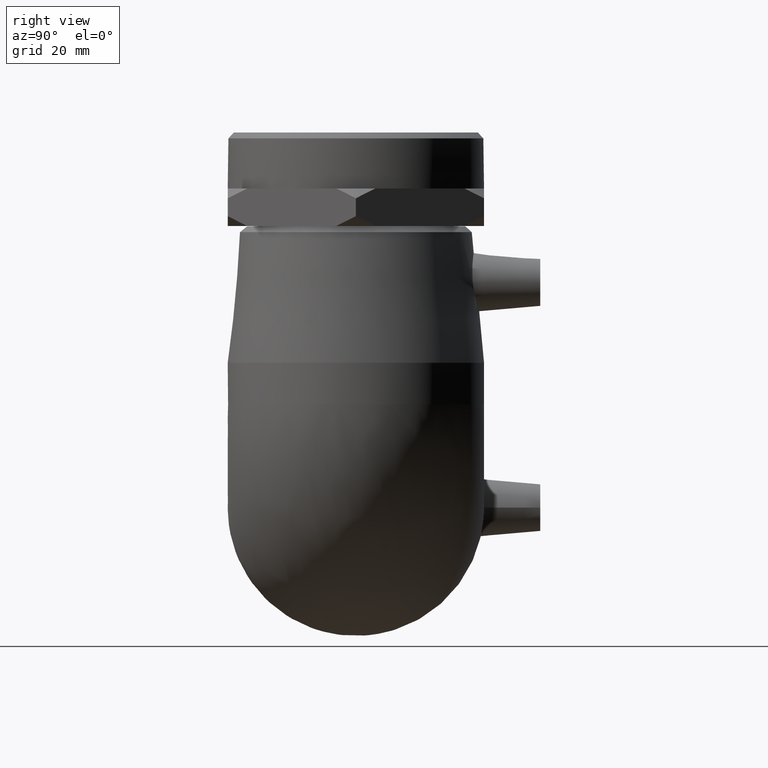
[diagram: clean part render]
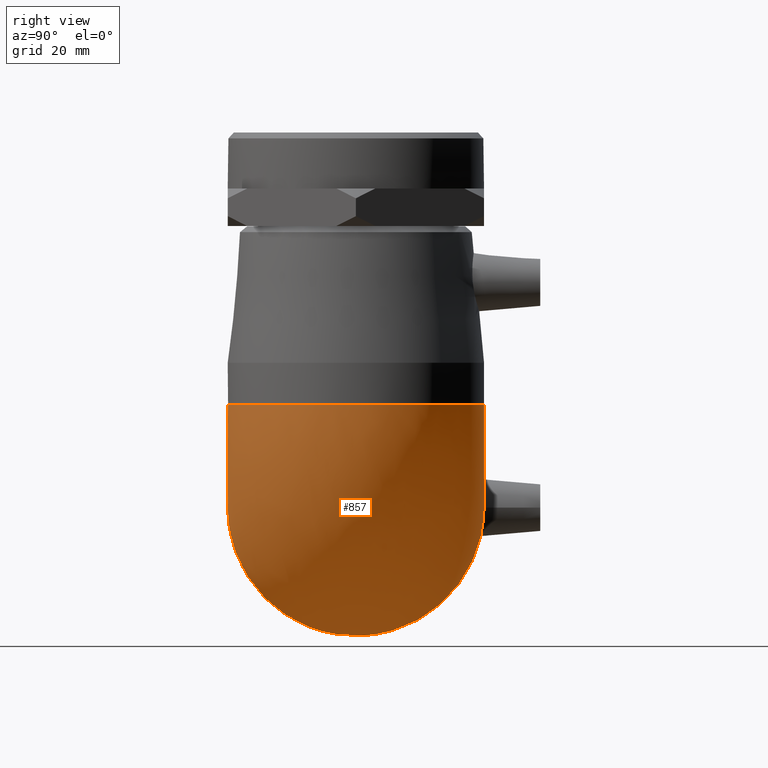
[diagram: same view with one face highlighted and labeled with its STEP entity id]
A machine part, right view. The second image highlights one B-rep face of the part: STEP entity #857.
In plain terms, the highlighted face is a freeform B-spline surface patch.
Its self-contained STEP definition (entity closure, byte-faithful):
#17=(
BOUNDED_SURFACE()
B_SPLINE_SURFACE(2,2,((#1577,#1578,#1579),(#1580,#1581,#1582),(#1583,#1584,
#1585),(#1586,#1587,#1588),(#1589,#1590,#1591),(#1592,#1593,#1594),(#1595,
#1596,#1597),(#1598,#1599,#1600),(#1601,#1602,#1603)),.UNSPECIFIED.,.F.,
 .F.,.F.)
B_SPLINE_SURFACE_WITH_KNOTS((3,2,2,2,3),(3,3),(-2.50626626762527,-1.25313313381264,
0.,1.25313313381264,2.50626626762527),(-2.04758954793616E-18,1.5707963267949),
 .UNSPECIFIED.)
GEOMETRIC_REPRESENTATION_ITEM()
RATIONAL_B_SPLINE_SURFACE(((1.,0.707106781186547,1.),(0.810045530750343,
0.572788687863424,0.810045530750343),(1.,0.707106781186547,1.),(0.810045530750343,
0.572788687863423,0.810045530750343),(1.,0.707106781186547,1.),(0.810045530750343,
0.572788687863423,0.810045530750343),(1.,0.707106781186547,1.),(0.810045530750343,
0.572788687863424,0.810045530750343),(1.,0.707106781186547,1.)))
REPRESENTATION_ITEM('')
SURFACE()
);
#190=FACE_OUTER_BOUND('',#275,.T.);
#275=EDGE_LOOP('',(#750,#751));
#353=CIRCLE('',#964,41.);
#354=CIRCLE('',#965,41.);
#458=VERTEX_POINT('',#1604);
#459=VERTEX_POINT('',#1605);
#563=EDGE_CURVE('',#458,#459,#353,.T.);
#564=EDGE_CURVE('',#459,#458,#354,.T.);
#750=ORIENTED_EDGE('',*,*,#563,.T.);
#751=ORIENTED_EDGE('',*,*,#564,.T.);
#857=ADVANCED_FACE('',(#190),#17,.F.);
#964=AXIS2_PLACEMENT_3D('',#1606,#1191,#1192);
#965=AXIS2_PLACEMENT_3D('',#1607,#1193,#1194);
#1191=DIRECTION('center_axis',(6.12323399573677E-17,-1.5419764230905E-18,
-1.));
#1192=DIRECTION('ref_axis',(-1.,0.,-6.12323399573676E-17));
#1193=DIRECTION('center_axis',(1.,-1.5419764230905E-18,0.));
#1194=DIRECTION('ref_axis',(0.,0.,-1.));
#1577=CARTESIAN_POINT('Ctrl Pts',(-33.,24.3310501211929,33.));
#1578=CARTESIAN_POINT('Ctrl Pts',(-33.,24.3310501211929,33.));
#1579=CARTESIAN_POINT('Ctrl Pts',(-33.,24.3310501211929,33.));
#1580=CARTESIAN_POINT('Ctrl Pts',(-33.,48.2187325864428,15.3875030502686));
#1581=CARTESIAN_POINT('Ctrl Pts',(-15.3875030502686,48.2187325864428,15.3875030502686));
#1582=CARTESIAN_POINT('Ctrl Pts',(-15.3875030502686,48.2187325864428,33.));
#1583=CARTESIAN_POINT('Ctrl Pts',(-33.,38.9486841883009,-12.8062484748657));
#1584=CARTESIAN_POINT('Ctrl Pts',(12.8062484748657,38.9486841883009,-12.8062484748657));
#1585=CARTESIAN_POINT('Ctrl Pts',(12.8062484748657,38.9486841883009,33.));
#1586=CARTESIAN_POINT('Ctrl Pts',(-33.,29.678635790159,-41.));
#1587=CARTESIAN_POINT('Ctrl Pts',(41.,29.678635790159,-41.));
#1588=CARTESIAN_POINT('Ctrl Pts',(41.,29.678635790159,33.));
#1589=CARTESIAN_POINT('Ctrl Pts',(-33.,0.,-41.));
#1590=CARTESIAN_POINT('Ctrl Pts',(41.,-1.14106255308697E-16,-41.));
#1591=CARTESIAN_POINT('Ctrl Pts',(41.,-1.14106255308697E-16,33.));
#1592=CARTESIAN_POINT('Ctrl Pts',(-33.,-29.678635790159,-41.));
#1593=CARTESIAN_POINT('Ctrl Pts',(41.,-29.678635790159,-41.));
#1594=CARTESIAN_POINT('Ctrl Pts',(41.,-29.678635790159,33.));
#1595=CARTESIAN_POINT('Ctrl Pts',(-33.,-38.9486841883009,-12.8062484748657));
#1596=CARTESIAN_POINT('Ctrl Pts',(12.8062484748657,-38.9486841883009,-12.8062484748657));
#1597=CARTESIAN_POINT('Ctrl Pts',(12.8062484748657,-38.9486841883009,33.));
#1598=CARTESIAN_POINT('Ctrl Pts',(-33.,-48.2187325864428,15.3875030502686));
#1599=CARTESIAN_POINT('Ctrl Pts',(-15.3875030502686,-48.2187325864428,15.3875030502686));
#1600=CARTESIAN_POINT('Ctrl Pts',(-15.3875030502686,-48.2187325864428,33.));
#1601=CARTESIAN_POINT('Ctrl Pts',(-33.,-24.3310501211929,33.));
#1602=CARTESIAN_POINT('Ctrl Pts',(-33.,-24.3310501211929,33.));
#1603=CARTESIAN_POINT('Ctrl Pts',(-33.,-24.3310501211929,33.));
#1604=CARTESIAN_POINT('',(-32.9999999999978,24.3310501211959,33.));
#1605=CARTESIAN_POINT('',(-32.9999999999978,-24.3310501211959,33.));
#1606=CARTESIAN_POINT('Origin',(-2.02066721859313E-15,-8.78926561161582E-17,
33.));
#1607=CARTESIAN_POINT('Origin',(-33.,-8.78926561161582E-17,0.));